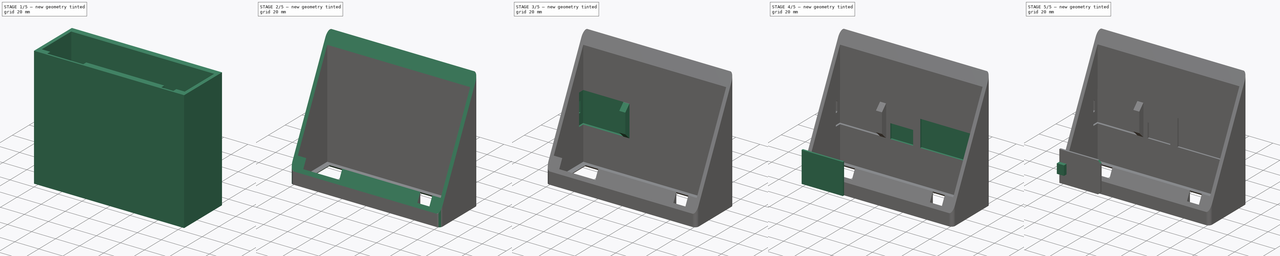
[diagram: build sequence overview — one tinted view per stage of 5, left to right]
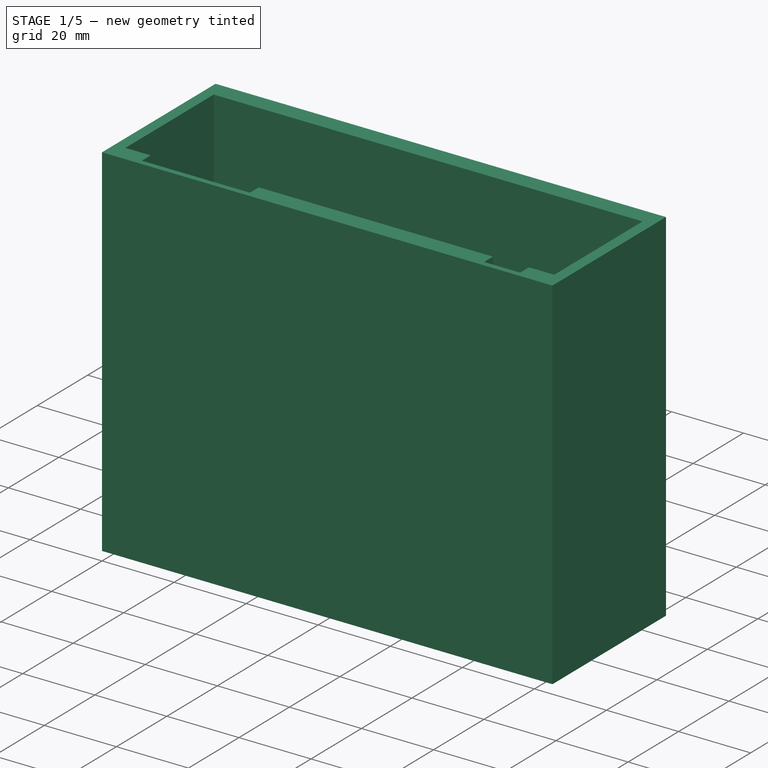
[diagram: stage 1 of 5 — iso view after this stage's code; geometry added in this stage tinted green]
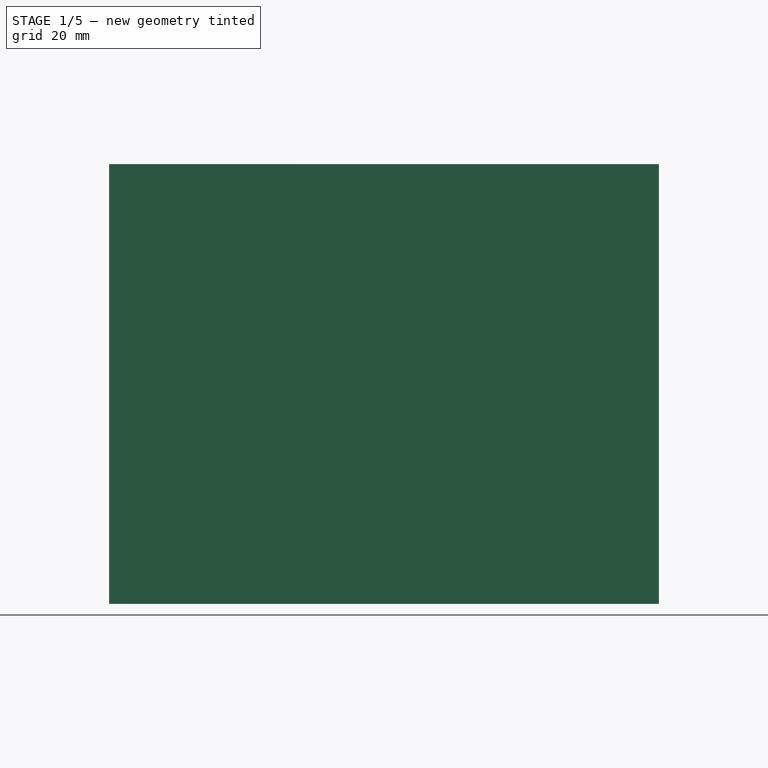
[diagram: stage 1 of 5 — front view after this stage's code; geometry added in this stage tinted green]
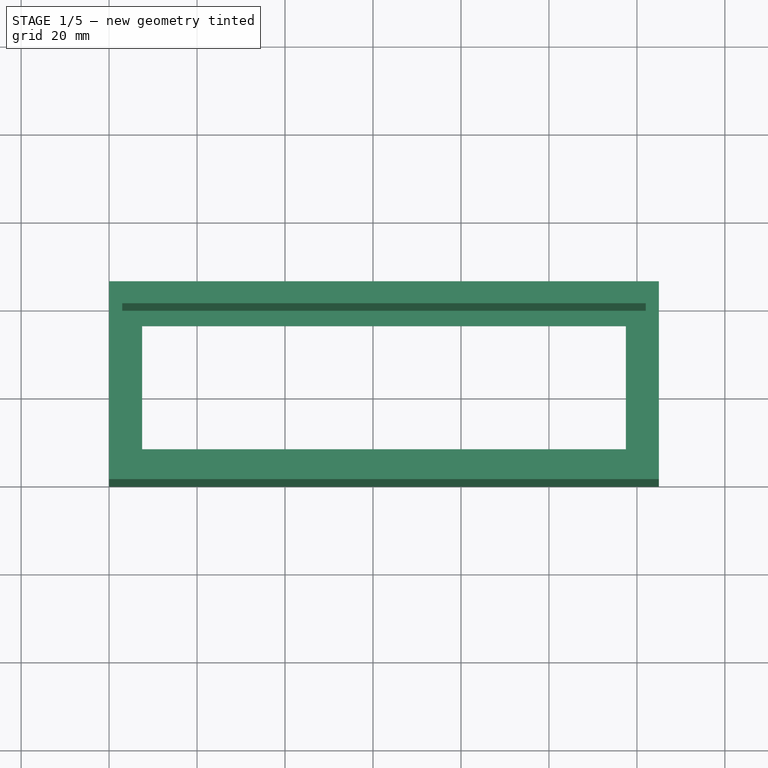
[diagram: stage 1 of 5 — top view after this stage's code; geometry added in this stage tinted green]
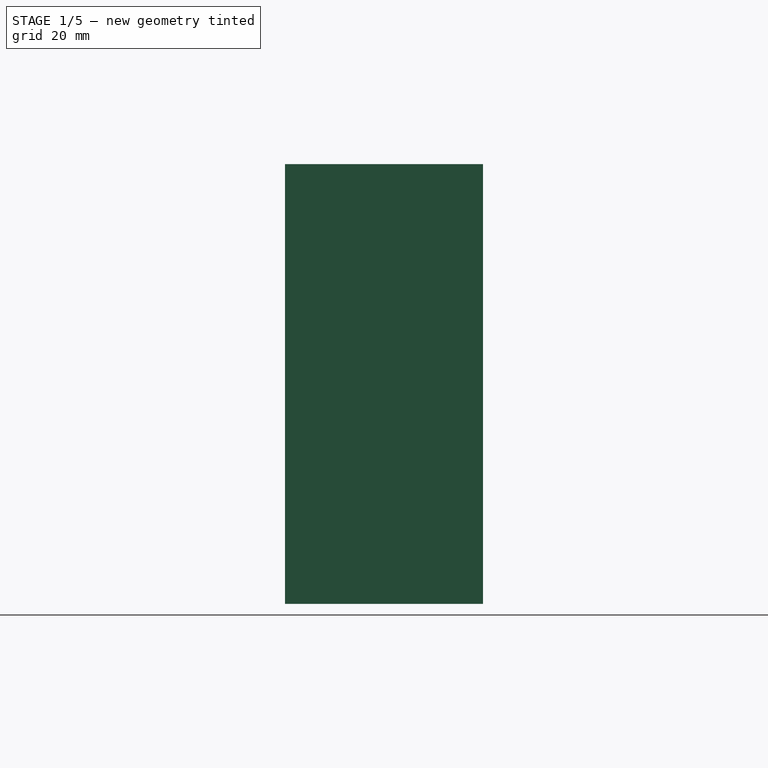
[diagram: stage 1 of 5 — right view after this stage's code; geometry added in this stage tinted green]
FCSTD DOCUMENT  (FreeCAD 0.18R4 (GitTag))
Label: casing
License: All rights reserved
LicenseURL: http://en.wikipedia.org/wiki/All_rights_reserved
objects: Sketcher::SketchObject×14, PartDesign::Pocket×7, PartDesign::Pad×6, PartDesign::Chamfer×3, PartDesign::Fillet×2, PartDesign::Body×2
note: 47 computed .brp shape members not serialized (recipe doc carries the construction recipe); baked Part::Feature solids carry a one-line shape summary decoded from their .brp

FEATURE [Sketcher::SketchObject] Sketch
  MapMode = 5
  Support = -> [XY_Plane]
  sketch-geometry (6):
    g0: LineSegment StartX=0 StartY=0 StartZ=0 EndX=125 EndY=0 EndZ=0
    g1: LineSegment StartX=125 StartY=0 StartZ=0 EndX=125 EndY=45 EndZ=0
    g2: LineSegment StartX=125 StartY=45 StartZ=0 EndX=0 EndY=45 EndZ=0
    g3: LineSegment StartX=0 StartY=45 StartZ=0 EndX=0 EndY=0 EndZ=0
    g4: LineSegment [constr] StartX=0 StartY=22.5 StartZ=0 EndX=125 EndY=22.5 EndZ=0
    g5: LineSegment [constr] StartX=62.5 StartY=45 StartZ=0 EndX=62.5 EndY=0 EndZ=0
  constraints (18):
    c: Coincident(g0,g1)
    c: Coincident(g1,g2)
    c: Coincident(g2,g3)
    c: Coincident(g3,g0)
    c: Horizontal(g0)
    c: Horizontal(g2)
    c: Vertical(g1)
    c: Vertical(g3)
    c: DistanceX(g0) = 0
    c: DistanceY(g0) = 0
    c: DistanceY(g3,g3) = 45  'OuterHeight'
    c: DistanceX(g0,g0) = 125  'OuterWidth'
    c: Vertical(g5)
    c: Horizontal(g4)
    c: Symmetric(g0,g0,g5)
    c: Symmetric(g0,g2,g4)
    c: PointOnObject(g4,g1)
    c: PointOnObject(g5,g2)
FEATURE [PartDesign::Pad] Pad
  Length = 100
  Length2 = 100
  Profile = -> Sketch
  Type = 0
FEATURE [Sketcher::SketchObject] Sketch001
  MapMode = 5
  Placement = pos=(0,0,100) rot=(0,0,1;0rad)
  Support = -> [Pad]
  expr: Constraints.BezelHeight = (Sketch.Constraints.OuterHeight - Constraints.ScreenHeight) / 2
  expr: Constraints.BezelWidth = (Sketch.Constraints.OuterWidth - Constraints.ScreenWidth) / 2
  sketch-geometry (4):
    g0: LineSegment StartX=7.5 StartY=8.5 StartZ=0 EndX=117.5 EndY=8.5 EndZ=0
    g1: LineSegment StartX=117.5 StartY=8.5 StartZ=0 EndX=117.5 EndY=36.5 EndZ=0
    g2: LineSegment StartX=117.5 StartY=36.5 StartZ=0 EndX=7.5 EndY=36.5 EndZ=0
    g3: LineSegment StartX=7.5 StartY=36.5 StartZ=0 EndX=7.5 EndY=8.5 EndZ=0
  constraints (12):
    c: Coincident(g0,g1)
    c: Coincident(g1,g2)
    c: Coincident(g2,g3)
    c: Coincident(g3,g0)
    c: Horizontal(g0)
    c: Horizontal(g2)
    c: Vertical(g1)
    c: Vertical(g3)
    c: DistanceX(g2,g2) = 110  'ScreenWidth'
    c: DistanceY(g3,g3) = 28  'ScreenHeight'
    c: DistanceX(g2) = 7.5  'BezelWidth'
    c: DistanceY(g0) = 8.5  'BezelHeight'
FEATURE [PartDesign::Pocket] Pocket
  BaseFeature = -> Pad
  Length = 100
  Length2 = 100
  Profile = -> Sketch001
  Type = 0
  expr: Length = Pad.Length
FEATURE [Sketcher::SketchObject] Sketch002
  MapMode = 5
  Placement = pos=(0,0,100) rot=(0,0,1;0rad)
  Support = -> [Pocket]
  expr: Constraints.WallHeight = (Sketch.Constraints.OuterHeight - Constraints.VFDHeight) / 2
  expr: Constraints.WallWidth = (Sketch.Constraints.OuterWidth - Constraints.VFDWidth) / 2
  sketch-geometry (4):
    g0: LineSegment StartX=3 StartY=40 StartZ=0 EndX=122 EndY=40 EndZ=0
    g1: LineSegment StartX=122 StartY=40 StartZ=0 EndX=122 EndY=5 EndZ=0
    g2: LineSegment StartX=122 StartY=5 StartZ=0 EndX=3 EndY=5 EndZ=0
    g3: LineSegment StartX=3 StartY=5 StartZ=0 EndX=3 EndY=40 EndZ=0
  constraints (12):
    c: Coincident(g0,g1)
    c: Coincident(g1,g2)
    c: Coincident(g2,g3)
    c: Coincident(g3,g0)
    c: Horizontal(g0)
    c: Horizontal(g2)
    c: Vertical(g1)
    c: Vertical(g3)
    c: DistanceX(g0,g0) = 119  'VFDWidth'
    c: DistanceY(g3,g3) = 35  'VFDHeight'
    c: DistanceX(g2) = 3  'WallWidth'
    c: DistanceY(g2) = 5  'WallHeight'
FEATURE [PartDesign::Pocket] Pocket001
  BaseFeature = -> Pocket
  Length = 98
  Length2 = 100
  Profile = -> Sketch002
  Type = 0
  expr: Length = Pad.Length - 2mm
FEATURE [Sketcher::SketchObject] Sketch003
  MapMode = 5
  Placement = pos=(0,0,100) rot=(0,0,1;0rad)
  Support = -> [Pocket001]
  expr: Constraints[18] = Sketch002.Constraints.WallHeight
  expr: Constraints[15] = Sketch002.Constraints.WallHeight + 5mm
  sketch-geometry (8):
    g0: LineSegment StartX=10 StartY=5 StartZ=0 EndX=40 EndY=5 EndZ=0
    g1: LineSegment StartX=40 StartY=5 StartZ=0 EndX=40 EndY=1.5 EndZ=0
    g2: LineSegment StartX=40 StartY=1.5 StartZ=0 EndX=10 EndY=1.5 EndZ=0
    g3: LineSegment StartX=10 StartY=1.5 StartZ=0 EndX=10 EndY=5 EndZ=0
    g4: LineSegment StartX=105 StartY=5 StartZ=0 EndX=115 EndY=5 EndZ=0
    g5: LineSegment StartX=115 StartY=5 StartZ=0 EndX=115 EndY=1.5 EndZ=0
    g6: LineSegment StartX=115 StartY=1.5 StartZ=0 EndX=105 EndY=1.5 EndZ=0
    g7: LineSegment StartX=105 StartY=1.5 StartZ=0 EndX=105 EndY=5 EndZ=0
  constraints (22):
    c: Coincident(g0,g1)
    c: Coincident(g1,g2)
    c: Coincident(g2,g3)
    c: Coincident(g3,g0)
    c: Horizontal(g0)
    c: Horizontal(g2)
    c: Vertical(g1)
    c: Vertical(g3)
    c: Coincident(g4,g5)
    c: Coincident(g5,g6)
    c: Coincident(g6,g7)
    c: Coincident(g7,g4)
    c: Vertical(g5)
    c: Vertical(g7)
    c: DistanceX(g2,g2) = 30
    c: DistanceX(g-1,g2) = 10
    c: DistanceX(g0,g4) = 65
    c: DistanceX(g4,g4) = 10
    c: DistanceY(g-1,g0) = 5
    c: DistanceY(g2,g0) = 3.5
    c: Tangent(g4,g0)
    c: Tangent(g6,g2)
FEATURE [PartDesign::Pocket] Pocket002
  BaseFeature = -> Pocket001
  Length = 98
  Length2 = 100
  Profile = -> Sketch003
  Type = 0
  expr: Length = Pad.Length - 2mm
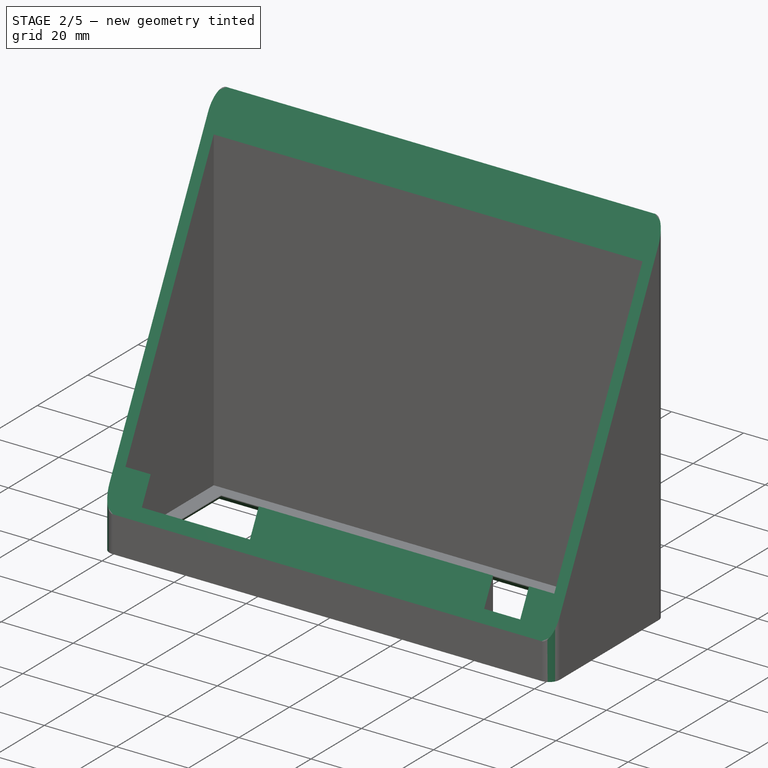
[diagram: stage 2 of 5 — iso view after this stage's code; geometry added in this stage tinted green]
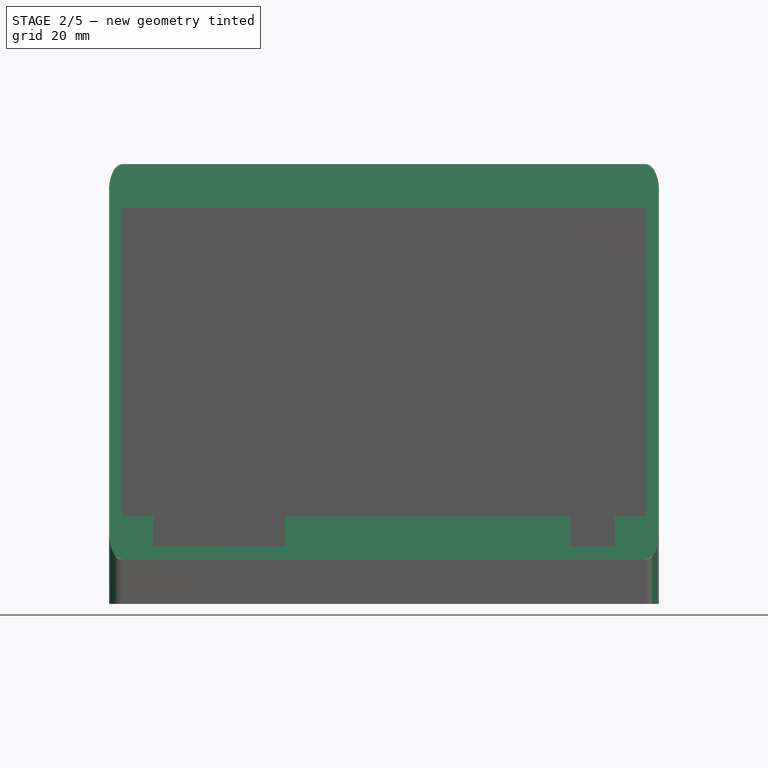
[diagram: stage 2 of 5 — front view after this stage's code; geometry added in this stage tinted green]
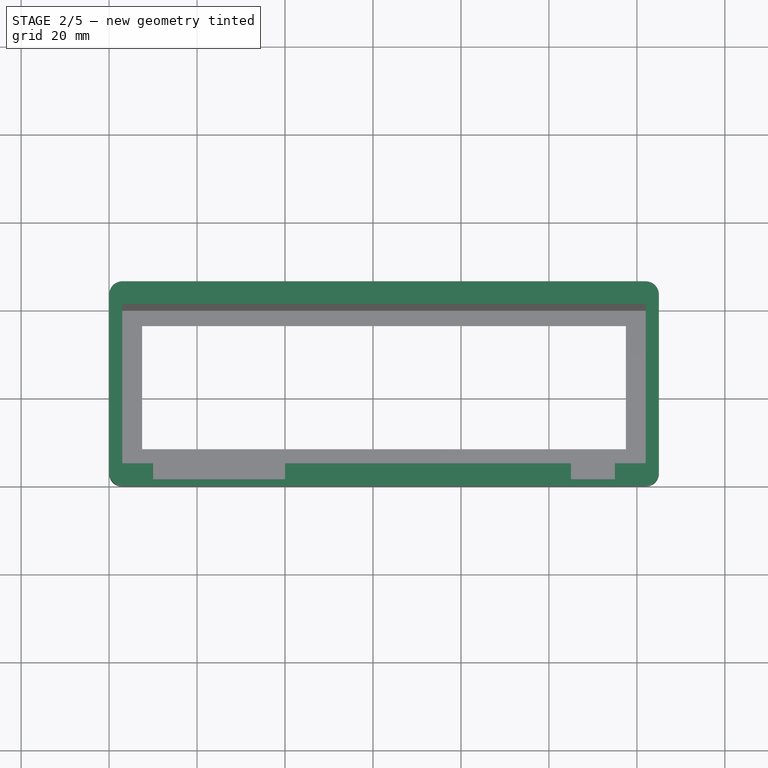
[diagram: stage 2 of 5 — top view after this stage's code; geometry added in this stage tinted green]
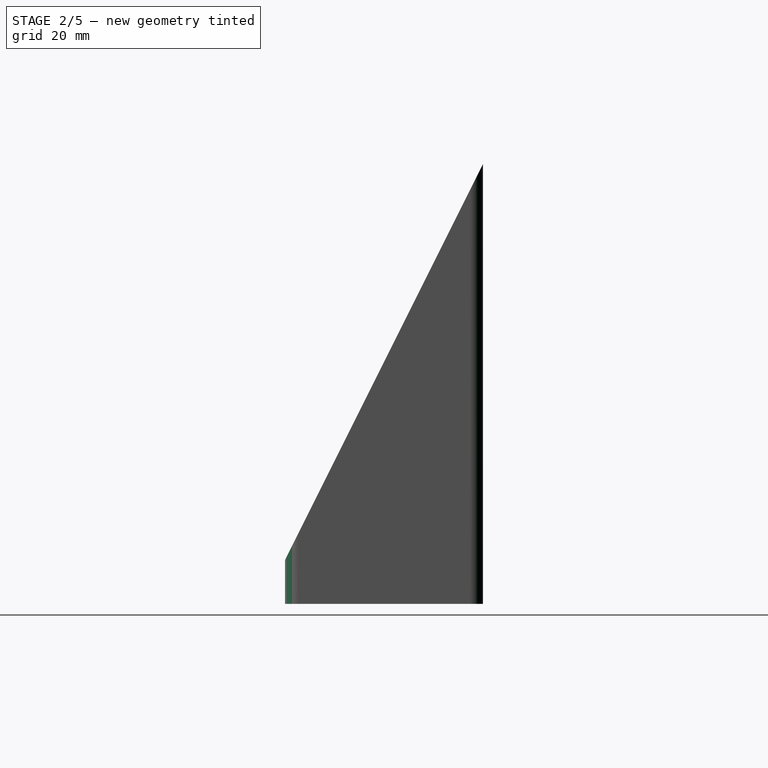
[diagram: stage 2 of 5 — right view after this stage's code; geometry added in this stage tinted green]
FEATURE [PartDesign::Fillet] Fillet001
  Base = -> Pocket002 [Edge8,Edge2,Edge1,Edge5]
  BaseFeature = -> Pocket002
  Radius = 3
FEATURE [PartDesign::Chamfer] Chamfer
  Base = -> Fillet001 [Edge12,Edge14,Edge15,Edge13]
  BaseFeature = -> Fillet001
  Size = 1.8
FEATURE [Sketcher::SketchObject] Sketch004
  MapMode = 5
  Placement = pos=(0,0,0) rot=(0.57735,-0.57735,-0.57735;2.0944rad)
  Support = -> [Chamfer]
  expr: Constraints[5] = Pad.Length
  expr: Constraints[4] = Sketch.Constraints.OuterHeight
  sketch-geometry (3):
    g0: LineSegment StartX=0 StartY=10 StartZ=0 EndX=-45 EndY=100 EndZ=0
    g1: LineSegment StartX=-45 StartY=100 StartZ=0 EndX=0 EndY=100 EndZ=0
    g2: LineSegment StartX=0 StartY=10 StartZ=0 EndX=0 EndY=100 EndZ=0
  constraints (9):
    c: Vertical(g2)
    c: Horizontal(g1)
    c: DistanceX(g2) = 0
    c: DistanceY(g0) = 10
    c: DistanceX(g1,g1) = 45
    c: DistanceY(g-1,g1) = 100
    c: Coincident(g0,g1)
    c: Coincident(g1,g2)
    c: Coincident(g0,g2)
FEATURE [PartDesign::Pocket] Pocket003
  BaseFeature = -> Chamfer
  Length = 125
  Length2 = 100
  Profile = -> Sketch004
  Type = 0
  expr: Length = Sketch.Constraints.OuterWidth
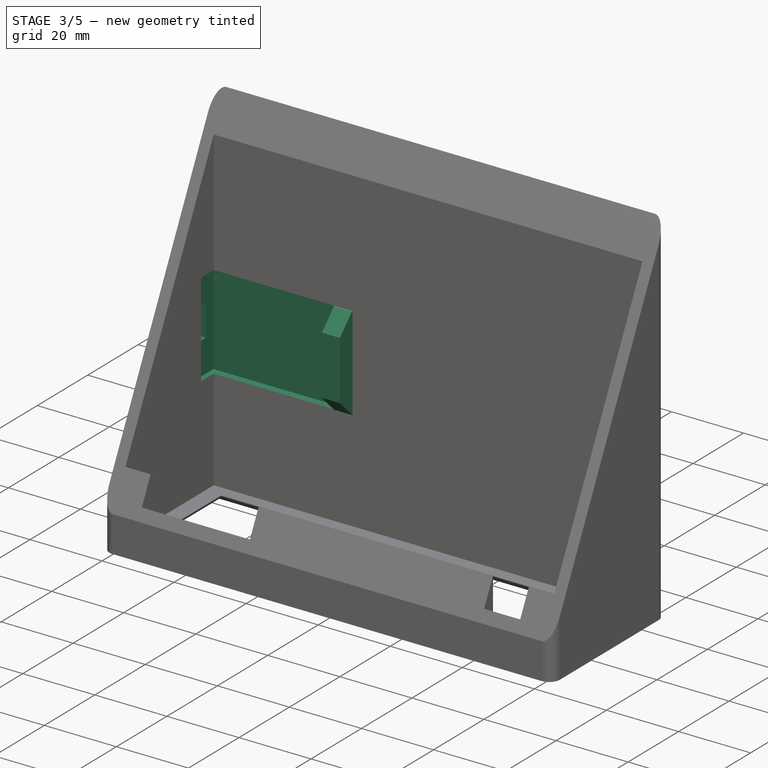
[diagram: stage 3 of 5 — iso view after this stage's code; geometry added in this stage tinted green]
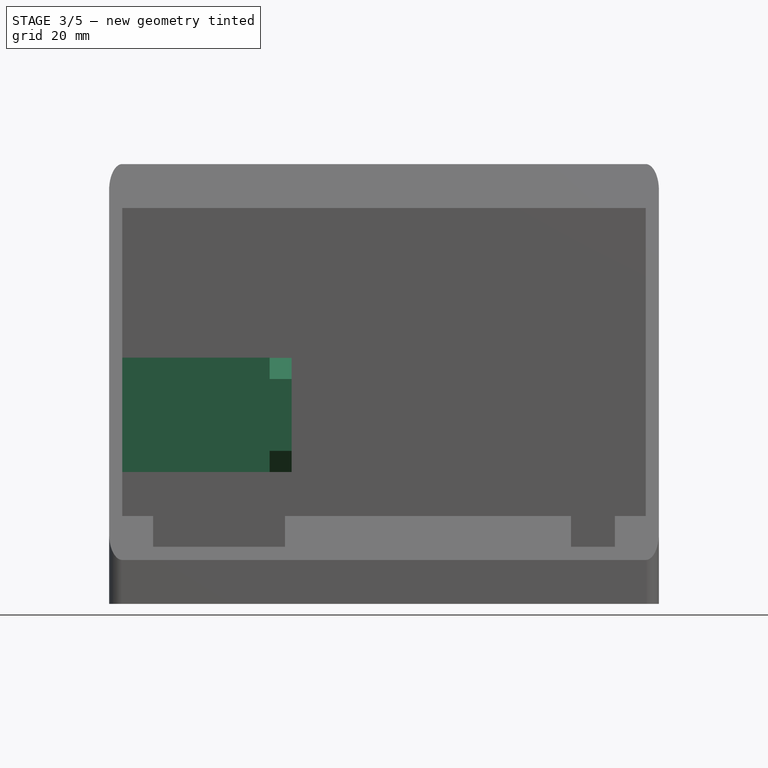
[diagram: stage 3 of 5 — front view after this stage's code; geometry added in this stage tinted green]
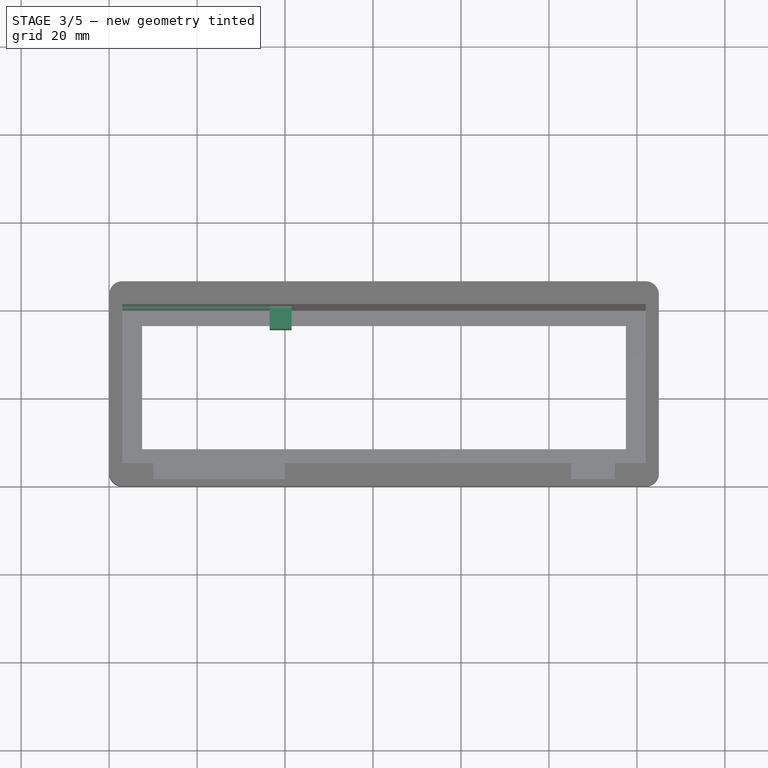
[diagram: stage 3 of 5 — top view after this stage's code; geometry added in this stage tinted green]
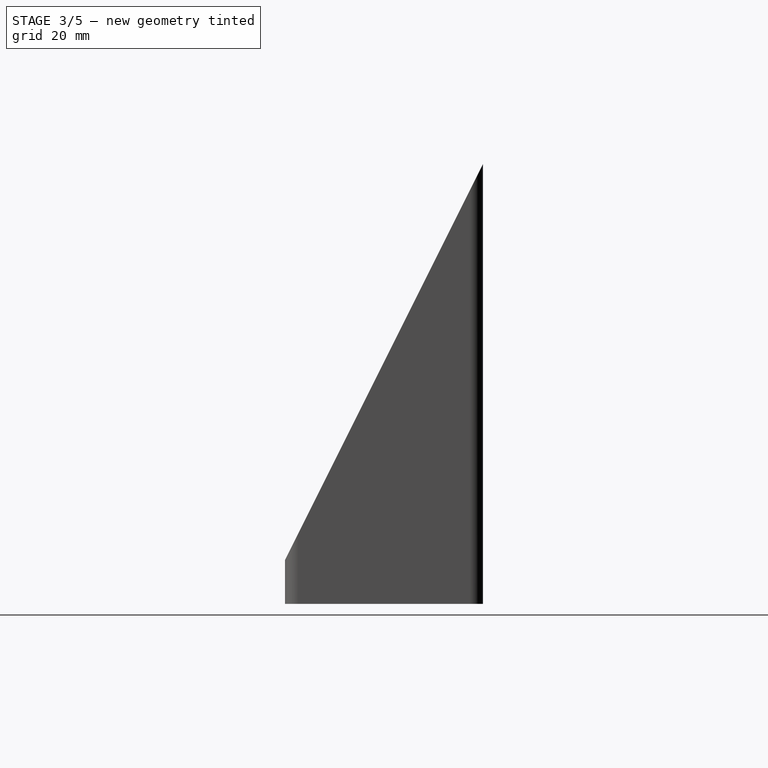
[diagram: stage 3 of 5 — right view after this stage's code; geometry added in this stage tinted green]
FEATURE [Sketcher::SketchObject] Sketch005
  MapMode = 5
  Placement = pos=(0,40,0) rot=(1,0,0;1.5708rad)
  Support = -> [Pocket003]
  expr: Constraints.WemosInstep = 1.5
  sketch-geometry (4):
    g0: LineSegment StartX=1.5 StartY=56 StartZ=0 EndX=36.5 EndY=56 EndZ=0
    g1: LineSegment StartX=36.5 StartY=56 StartZ=0 EndX=36.5 EndY=30 EndZ=0
    g2: LineSegment StartX=36.5 StartY=30 StartZ=0 EndX=1.5 EndY=30 EndZ=0
    g3: LineSegment StartX=1.5 StartY=30 StartZ=0 EndX=1.5 EndY=56 EndZ=0
  constraints (12):
    c: Coincident(g0,g1)
    c: Coincident(g1,g2)
    c: Coincident(g2,g3)
    c: Coincident(g3,g0)
    c: Horizontal(g0)
    c: Horizontal(g2)
    c: Vertical(g1)
    c: Vertical(g3)
    c: DistanceX(g2) = 1.5  'WemosInstep'
    c: DistanceY(g2) = 30  'WemosSetback'
    c: DistanceY(g3,g3) = 26  'WemosW'
    c: DistanceX(g2,g2) = 35  'WemosL'
FEATURE [PartDesign::Pocket] Pocket004
  BaseFeature = -> Pocket003
  Length = 2
  Length2 = 5
  Profile = -> Sketch005
  Type = 4
FEATURE [Sketcher::SketchObject] Sketch006
  MapMode = 5
  Placement = pos=(0,40,0) rot=(1,0,0;1.5708rad)
  Support = -> [Pocket004]
  expr: Constraints[9] = Sketch005.Constraints.WemosSetback
  expr: Constraints[8] = Sketch005.Constraints.WemosL + Sketch005.Constraints.WemosInstep
  sketch-geometry (4):
    g0: LineSegment StartX=36.5 StartY=30 StartZ=0 EndX=41.5 EndY=30 EndZ=0
    g1: LineSegment StartX=41.5 StartY=30 StartZ=0 EndX=41.5 EndY=55.95 EndZ=0
    g2: LineSegment StartX=41.5 StartY=55.95 StartZ=0 EndX=36.5 EndY=55.95 EndZ=0
    g3: LineSegment StartX=36.5 StartY=55.95 StartZ=0 EndX=36.5 EndY=30 EndZ=0
  constraints (12):
    c: Coincident(g0,g1)
    c: Coincident(g1,g2)
    c: Coincident(g2,g3)
    c: Coincident(g3,g0)
    c: Horizontal(g0)
    c: Horizontal(g2)
    c: Vertical(g1)
    c: Vertical(g3)
    c: DistanceX(g0) = 36.5
    c: DistanceY(g0) = 30
    c: DistanceX(g0,g0) = 5
    c: DistanceY(g3,g3) = 25.95
FEATURE [PartDesign::Pad] Pad001
  BaseFeature = -> Pocket004
  Length = 5
  Length2 = 100
  Profile = -> Sketch006
  Type = 0
FEATURE [PartDesign::Chamfer] Chamfer001
  Base = -> Pad001 [Edge103,Edge99]
  BaseFeature = -> Pad001
  Size = 4.8
FEATURE [Sketcher::SketchObject] Sketch007
  MapMode = 5
  Placement = pos=(1.5,0,0) rot=(0.57735,0.57735,0.57735;2.0944rad)
  Support = -> [Chamfer001]
  expr: Constraints[11] = Sketch002.Constraints.WallHeight + Sketch002.Constraints.VFDHeight - Pocket004.Length2
  expr: Constraints[8] = Sketch005.Constraints.WemosSetback + 9mm
  sketch-geometry (4):
    g0: LineSegment StartX=35 StartY=48 StartZ=0 EndX=39 EndY=48 EndZ=0
    g1: LineSegment StartX=39 StartY=48 StartZ=0 EndX=39 EndY=39 EndZ=0
    g2: LineSegment StartX=39 StartY=39 StartZ=0 EndX=35 EndY=39 EndZ=0
    g3: LineSegment StartX=35 StartY=39 StartZ=0 EndX=35 EndY=48 EndZ=0
  constraints (12):
    c: Coincident(g0,g1)
    c: Coincident(g1,g2)
    c: Coincident(g2,g3)
    c: Coincident(g3,g0)
    c: Horizontal(g0)
    c: Horizontal(g2)
    c: Vertical(g1)
    c: Vertical(g3)
    c: DistanceY(g1) = 39
    c: DistanceX(g0,g0) = 4
    c: DistanceY(g3,g3) = 9
    c: DistanceX(g2) = 35
FEATURE [PartDesign::Pocket] Pocket005
  BaseFeature = -> Chamfer001
  Length = 5
  Length2 = 100
  Profile = -> Sketch007
  Type = 0
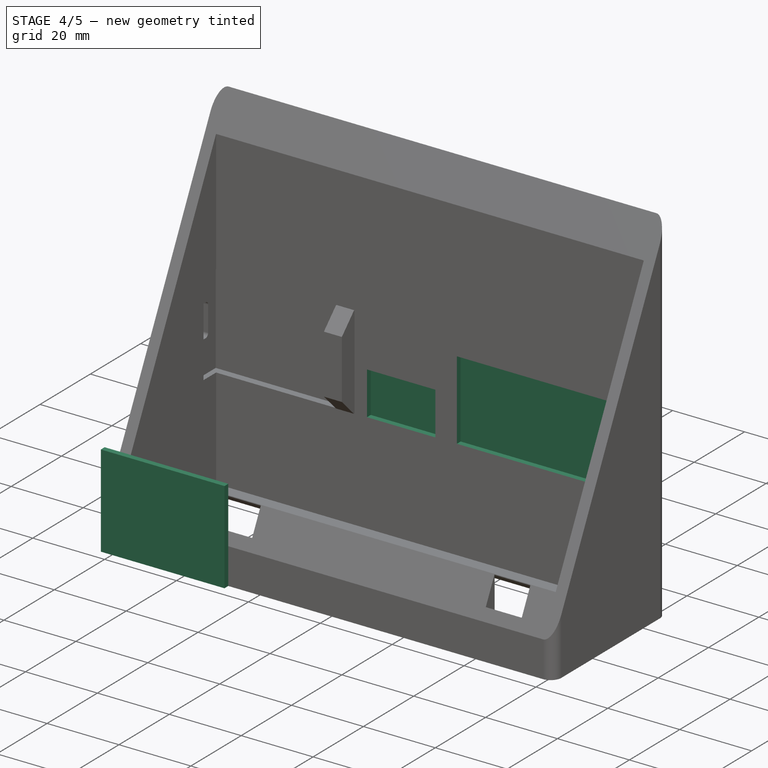
[diagram: stage 4 of 5 — iso view after this stage's code; geometry added in this stage tinted green]
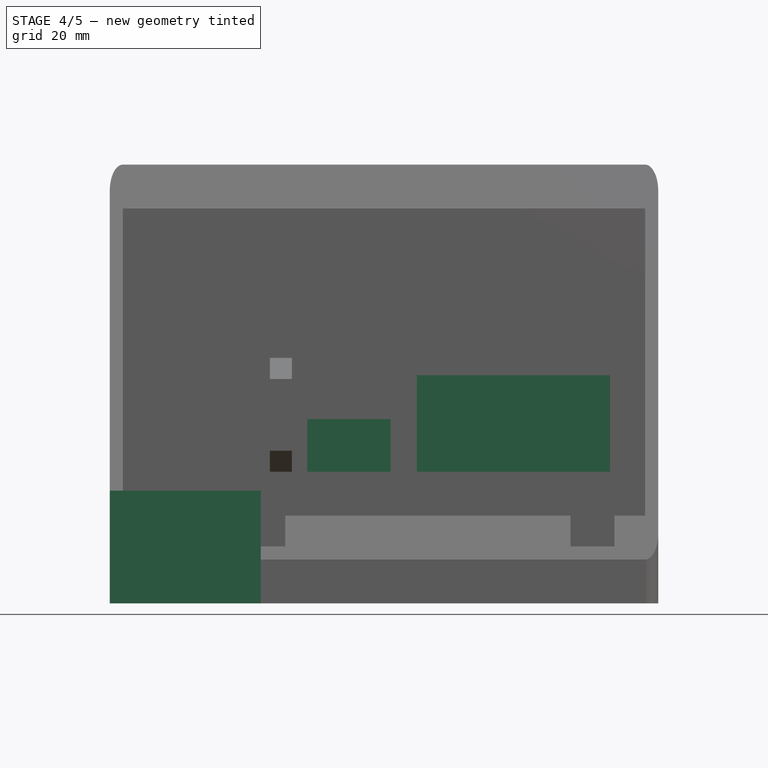
[diagram: stage 4 of 5 — front view after this stage's code; geometry added in this stage tinted green]
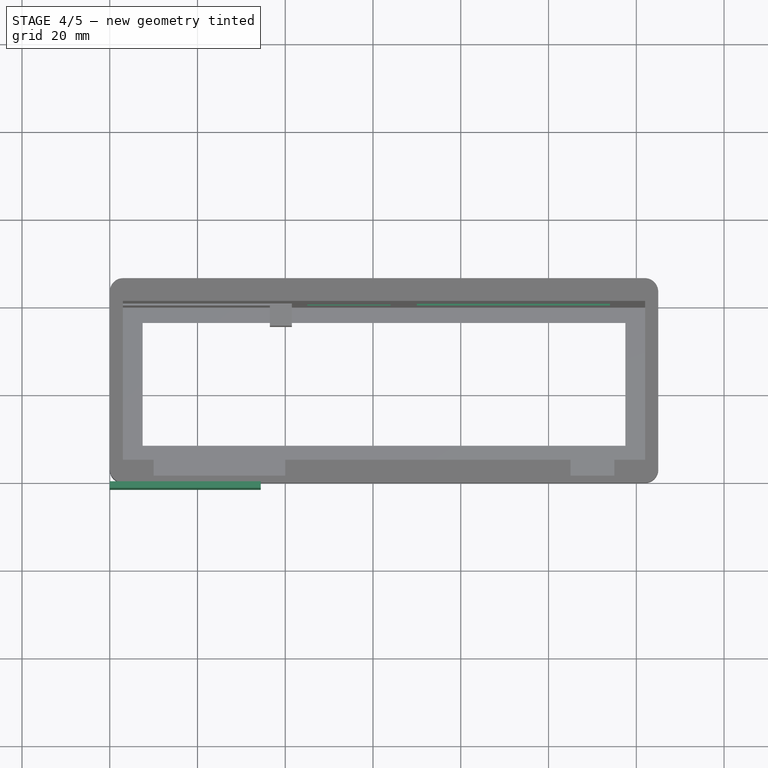
[diagram: stage 4 of 5 — top view after this stage's code; geometry added in this stage tinted green]
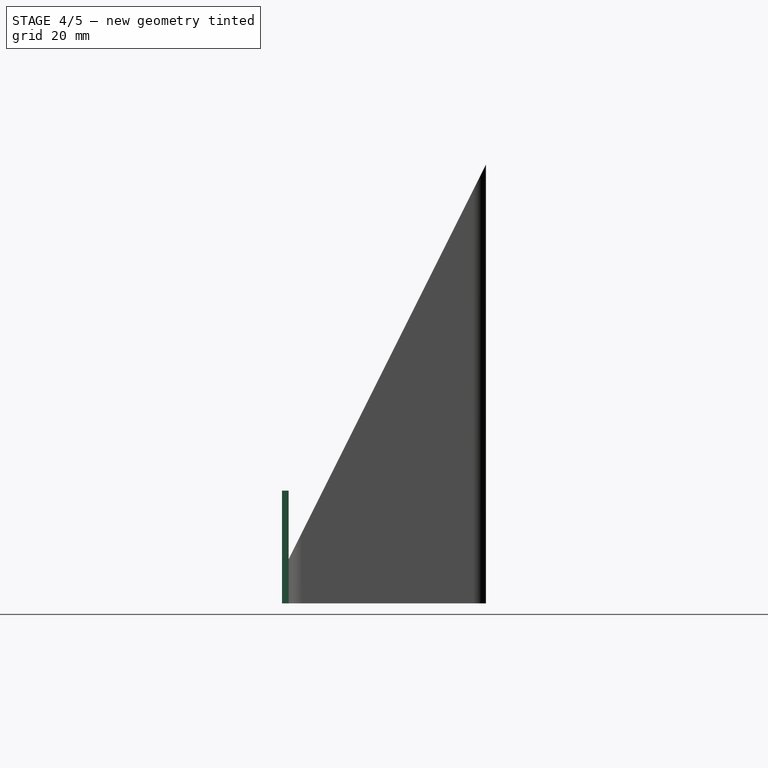
[diagram: stage 4 of 5 — right view after this stage's code; geometry added in this stage tinted green]
FEATURE [PartDesign::Fillet] Fillet
  Base = -> Pocket005 [Edge130,Edge131,Edge129,Edge128]
  BaseFeature = -> Pocket005
  Radius = 1
FEATURE [Sketcher::SketchObject] Sketch008
  MapMode = 5
  Placement = pos=(0,40,0) rot=(1,0,0;1.5708rad)
  Support = -> [Fillet]
  expr: Constraints[23] = Sketch005.Constraints.WemosSetback
  expr: Constraints[21] = Sketch005.Constraints.WemosSetback
  sketch-geometry (8):
    g0: LineSegment StartX=45 StartY=42 StartZ=0 EndX=64 EndY=42 EndZ=0
    g1: LineSegment StartX=64 StartY=42 StartZ=0 EndX=64 EndY=30 EndZ=0
    g2: LineSegment StartX=64 StartY=30 StartZ=0 EndX=45 EndY=30 EndZ=0
    g3: LineSegment StartX=45 StartY=30 StartZ=0 EndX=45 EndY=42 EndZ=0
    g4: LineSegment StartX=70 StartY=52 StartZ=0 EndX=114 EndY=52 EndZ=0
    g5: LineSegment StartX=114 StartY=52 StartZ=0 EndX=114 EndY=30 EndZ=0
    g6: LineSegment StartX=114 StartY=30 StartZ=0 EndX=70 EndY=30 EndZ=0
    g7: LineSegment StartX=70 StartY=30 StartZ=0 EndX=70 EndY=52 EndZ=0
  constraints (24):
    c: Coincident(g0,g1)
    c: Coincident(g1,g2)
    c: Coincident(g2,g3)
    c: Coincident(g3,g0)
    c: Horizontal(g0)
    c: Horizontal(g2)
    c: Vertical(g1)
    c: Vertical(g3)
    c: Coincident(g4,g5)
    c: Coincident(g5,g6)
    c: Coincident(g6,g7)
    c: Coincident(g7,g4)
    c: Horizontal(g4)
    c: Horizontal(g6)
    c: Vertical(g5)
    c: Vertical(g7)
    c: DistanceY(g3,g3) = 12
    c: DistanceY(g7,g7) = 22
    c: DistanceX(g0,g0) = 19
    c: DistanceX(g4,g4) = 44
    c: DistanceX(g2) = 45
    c: DistanceY(g2) = 30
    c: DistanceX(g6) = 70
    c: DistanceY(g6) = 30
FEATURE [PartDesign::Pocket] Pocket006
  BaseFeature = -> Fillet
  Length = 1.5
  Length2 = 100
  Profile = -> Sketch008
  Type = 0
FEATURE [Sketcher::SketchObject] Sketch009
  MapMode = 5
  Placement = pos=(0,0,0) rot=(1,0,0;1.5708rad)
  Support = -> [XZ_Plane002]
  sketch-geometry (4):
    g0: LineSegment StartX=0 StartY=4e-16 StartZ=0 EndX=34.4 EndY=4e-16 EndZ=0
    g1: LineSegment StartX=34.4 StartY=4e-16 StartZ=0 EndX=34.4 EndY=25.7 EndZ=0
    g2: LineSegment StartX=34.4 StartY=25.7 StartZ=0 EndX=0 EndY=25.7 EndZ=0
    g3: LineSegment StartX=0 StartY=25.7 StartZ=0 EndX=0 EndY=0 EndZ=0
  constraints (11):
    c: Coincident(g0,g1)
    c: Coincident(g1,g2)
    c: Coincident(g2,g3)
    c: Coincident(g3,g0)
    c: Horizontal(g0)
    c: Horizontal(g2)
    c: Vertical(g1)
    c: Vertical(g3)
    c: DistanceY(g1,g1) = 25.7
    c: Coincident(g0,g-1)
    c: DistanceX(g2,g2) = 34.4
FEATURE [PartDesign::Pad] Pad002
  Length = 1.5
  Length2 = 100
  Placement = pos=(0,0,0) rot=(1,0,0;1.5708rad)
  Profile = -> Sketch009
  Type = 0
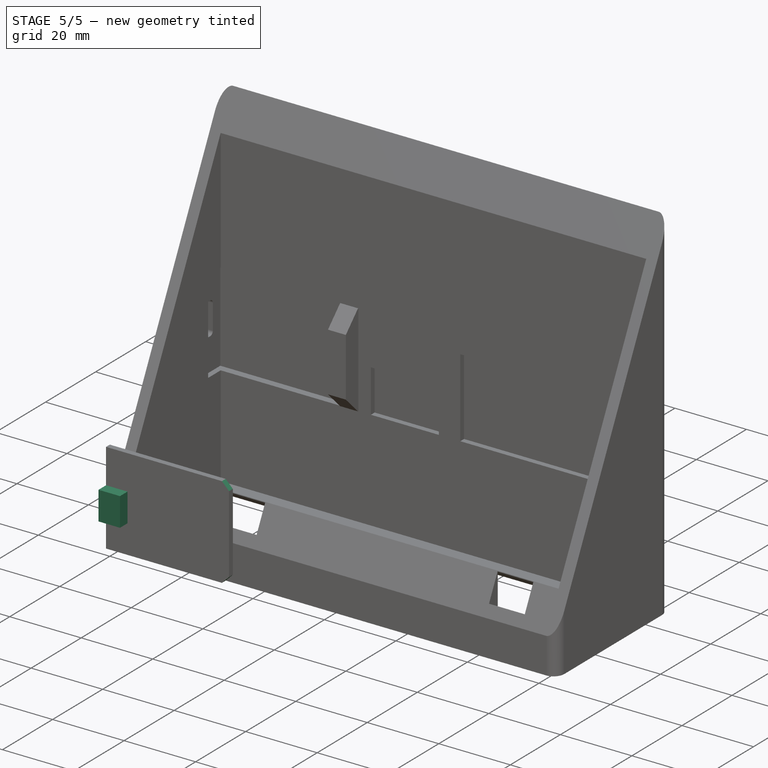
[diagram: stage 5 of 5 — iso view after this stage's code; geometry added in this stage tinted green]
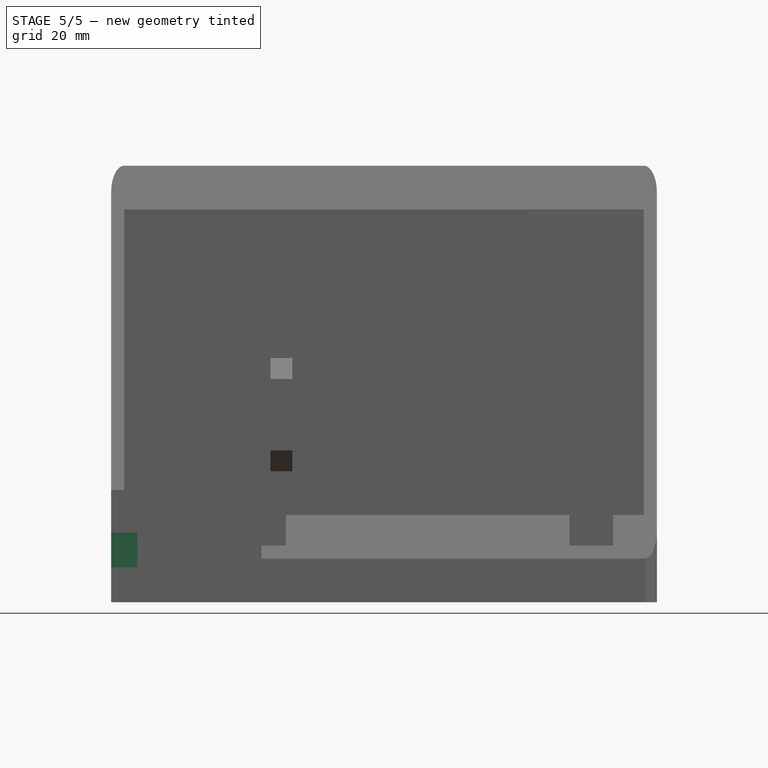
[diagram: stage 5 of 5 — front view after this stage's code; geometry added in this stage tinted green]
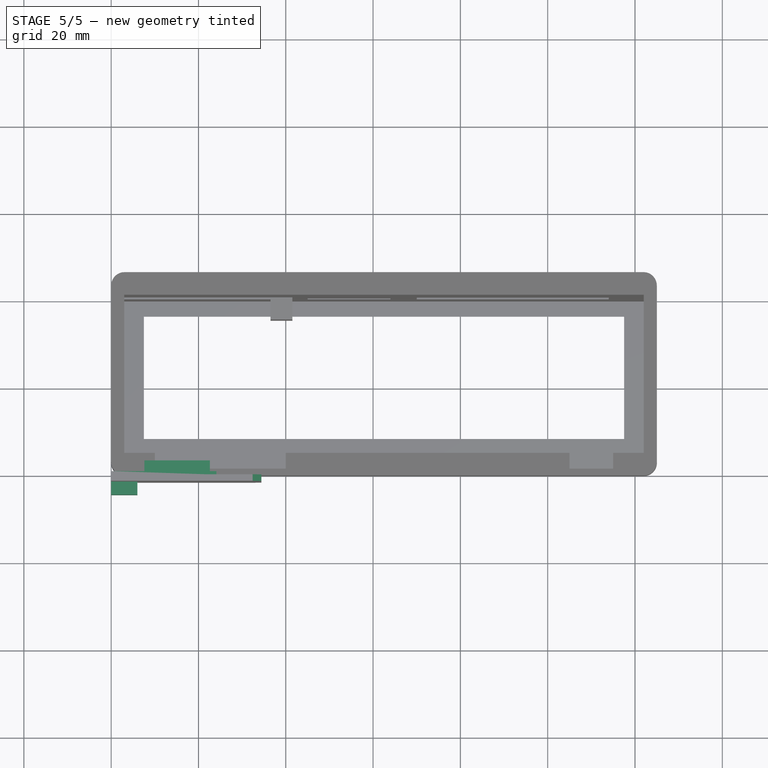
[diagram: stage 5 of 5 — top view after this stage's code; geometry added in this stage tinted green]
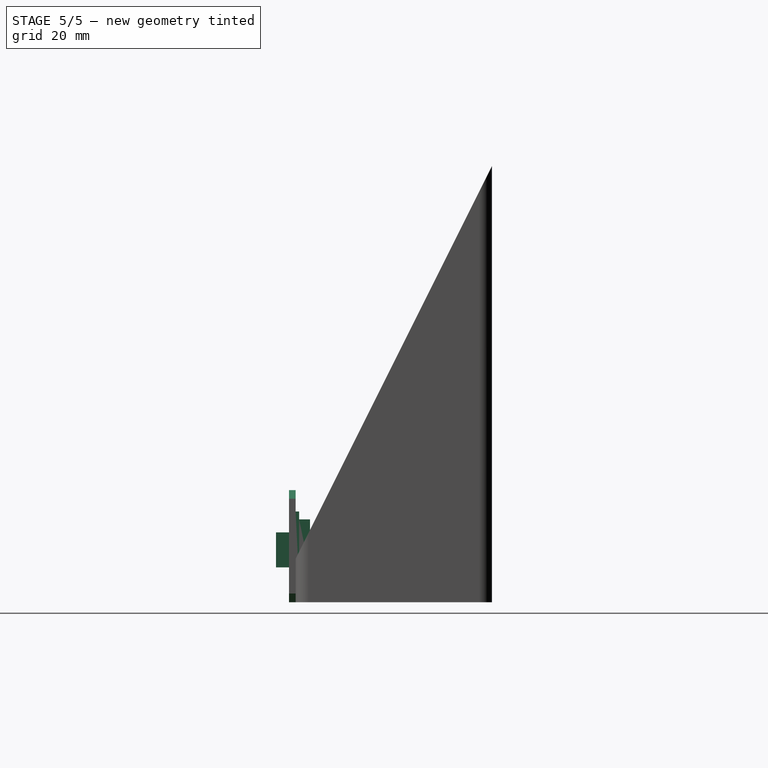
[diagram: stage 5 of 5 — right view after this stage's code; geometry added in this stage tinted green]
FEATURE [Sketcher::SketchObject] Sketch010
  MapMode = 5
  Placement = pos=(0,0,0) rot=(-1,0,0;1.5708rad)
  Support = -> [Pad002]
  sketch-geometry (4):
    g0: LineSegment StartX=24.1 StartY=-20.8 StartZ=0 EndX=0 EndY=-20.8 EndZ=0
    g1: LineSegment StartX=0 StartY=-20.8 StartZ=0 EndX=0 EndY=-4.8 EndZ=0
    g2: LineSegment StartX=0 StartY=-4.8 StartZ=0 EndX=24.1 EndY=-4.8 EndZ=0
    g3: LineSegment StartX=24.1 StartY=-4.8 StartZ=0 EndX=24.1 EndY=-20.8 EndZ=0
  constraints (12):
    c: Coincident(g0,g1)
    c: Coincident(g1,g2)
    c: Coincident(g2,g3)
    c: Coincident(g3,g0)
    c: Horizontal(g0)
    c: Horizontal(g2)
    c: Vertical(g1)
    c: Vertical(g3)
    c: DistanceY(g1,g1) = 16
    c: DistanceX(g0,g0) = 24.1
    c: DistanceX(g1) = 0
    c: DistanceY(g1) = -4.8
FEATURE [PartDesign::Pad] Pad003
  BaseFeature = -> Pad002
  Length = 0.8
  Length2 = 100
  Placement = pos=(0,0,0) rot=(1,0,0;1.5708rad)
  Profile = -> Sketch010
  Type = 0
FEATURE [Sketcher::SketchObject] Sketch011
  MapMode = 5
  Placement = pos=(0,0.8,-9e-16) rot=(-1,0,0;1.5708rad)
  Support = -> [Pad003]
  sketch-geometry (4):
    g0: LineSegment StartX=7.6 StartY=-7 StartZ=0 EndX=22.6 EndY=-7 EndZ=0
    g1: LineSegment StartX=22.6 StartY=-7 StartZ=0 EndX=22.6 EndY=-19 EndZ=0
    g2: LineSegment StartX=22.6 StartY=-19 StartZ=0 EndX=7.6 EndY=-19 EndZ=0
    g3: LineSegment StartX=7.6 StartY=-19 StartZ=0 EndX=7.6 EndY=-7 EndZ=0
  constraints (12):
    c: Coincident(g0,g1)
    c: Coincident(g1,g2)
    c: Coincident(g2,g3)
    c: Coincident(g3,g0)
    c: Horizontal(g0)
    c: Horizontal(g2)
    c: Vertical(g1)
    c: Vertical(g3)
    c: DistanceX(g0) = 7.6
    c: DistanceY(g0) = -7
    c: DistanceY(g3,g3) = 12
    c: DistanceX(g0,g0) = 15
FEATURE [PartDesign::Pad] Pad004
  BaseFeature = -> Pad003
  Length = 2.5
  Length2 = 100
  Placement = pos=(0,0,0) rot=(1,0,0;1.5708rad)
  Profile = -> Sketch011
  Type = 0
FEATURE [PartDesign::Chamfer] Chamfer002
  Base = -> Pad004 [Edge10,Edge2]
  BaseFeature = -> Pad004
  Placement = pos=(0,0,0) rot=(1,0,0;1.5708rad)
  Size = 2
FEATURE [Sketcher::SketchObject] Sketch012
  MapMode = 5
  Placement = pos=(0,-1.5,2.3e-15) rot=(1,0,0;1.5708rad)
  Support = -> [Chamfer002]
  sketch-geometry (4):
    g0: LineSegment StartX=0 StartY=16 StartZ=0 EndX=6 EndY=16 EndZ=0
    g1: LineSegment StartX=6 StartY=16 StartZ=0 EndX=6 EndY=8 EndZ=0
    g2: LineSegment StartX=6 StartY=8 StartZ=0 EndX=0 EndY=8 EndZ=0
    g3: LineSegment StartX=0 StartY=8 StartZ=0 EndX=0 EndY=16 EndZ=0
  constraints (12):
    c: Coincident(g0,g1)
    c: Coincident(g1,g2)
    c: Coincident(g2,g3)
    c: Coincident(g3,g0)
    c: Horizontal(g0)
    c: Horizontal(g2)
    c: Vertical(g1)
    c: Vertical(g3)
    c: DistanceX(g2) = 0
    c: DistanceY(g2) = 8
    c: DistanceY(g3,g3) = 8
    c: DistanceX(g2,g2) = 6
FEATURE [PartDesign::Pad] Pad005
  BaseFeature = -> Chamfer002
  Length = 3
  Length2 = 100
  Placement = pos=(0,0,0) rot=(1,0,0;1.5708rad)
  Profile = -> Sketch012
  Type = 0
FEATURE [PartDesign::Body] Body002
  Group = -> [Sketch009,Pad002,Sketch010,Pad003,Sketch011,Pad004,Chamfer002,Sketch012,Pad005]
  Origin = -> Origin002
  Placement = pos=(2,40,30) rot=(0,0,1;0rad)
  Tip = -> Pad005
FEATURE [Sketcher::SketchObject] Sketch013
  MapMode = 5
  Placement = pos=(0,41.5,-1.33e-14) rot=(1,0,0;1.5708rad)
  Support = -> [Pocket006]
  sketch-geometry (4):
    g0: LineSegment StartX=70.1318 StartY=51.8591 StartZ=0 EndX=114.012 EndY=51.8591 EndZ=0
    g1: LineSegment StartX=114.012 StartY=51.8591 StartZ=0 EndX=114.012 EndY=29.7803 EndZ=0
    g2: LineSegment StartX=114.012 StartY=29.7803 StartZ=0 EndX=70.1318 EndY=29.7803 EndZ=0
    g3: LineSegment StartX=70.1318 StartY=29.7803 StartZ=0 EndX=70.1318 EndY=51.8591 EndZ=0
  constraints (12):
    c: Coincident(g0,g1)
    c: Coincident(g1,g2)
    c: Coincident(g2,g3)
    c: Coincident(g3,g0)
    c: Horizontal(g0)
    c: Horizontal(g2)
    c: Vertical(g1)
    c: Vertical(g3)
    c: DistanceX(g0) = 70.1318
    c: DistanceY(g0) = 51.8591
    c: DistanceX(g1) = 114.012
    c: DistanceY(g1) = 29.7803
FEATURE [PartDesign::Body] Body
  Group = -> [Sketch,Pad,Sketch001,Pocket,Sketch002,Pocket001,Sketch003,Pocket002,Fillet001,Chamfer,Sketch004,Pocket003,Sketch005,Pocket004,Sketch006,Pad001,Chamfer001,Sketch007,Pocket005,Fillet,Sketch008,Pocket006,Sketch013]
  Origin = -> Origin
  Tip = -> Pocket006
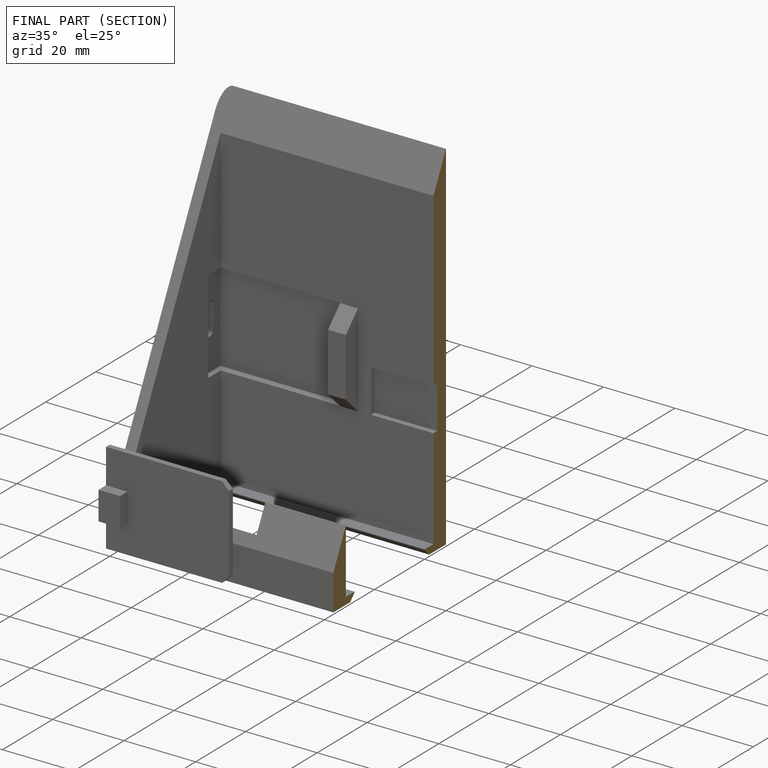
[diagram: finished part — half-section view (interior)]
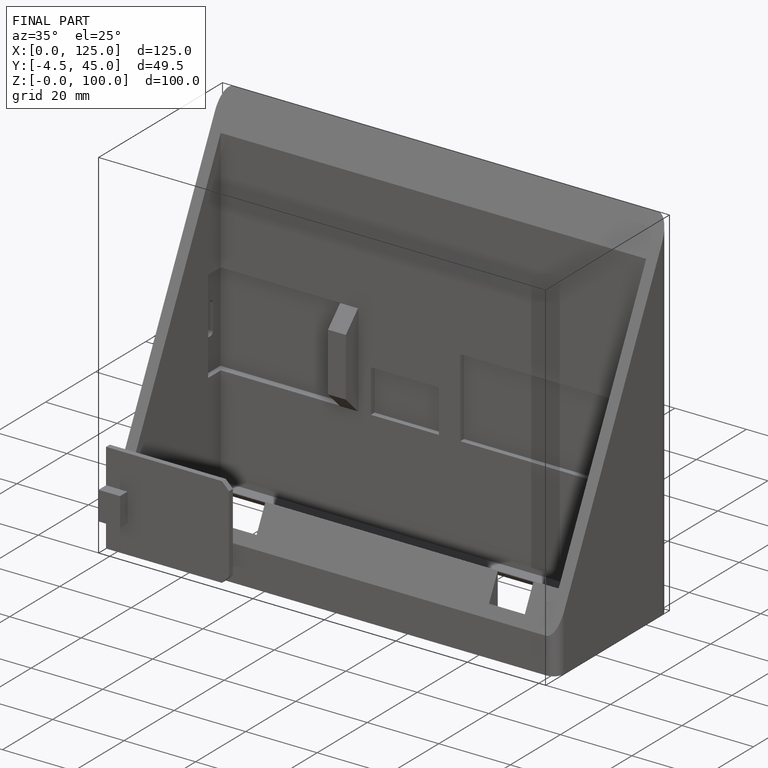
[diagram: finished part — iso view with bounding-box wireframe]
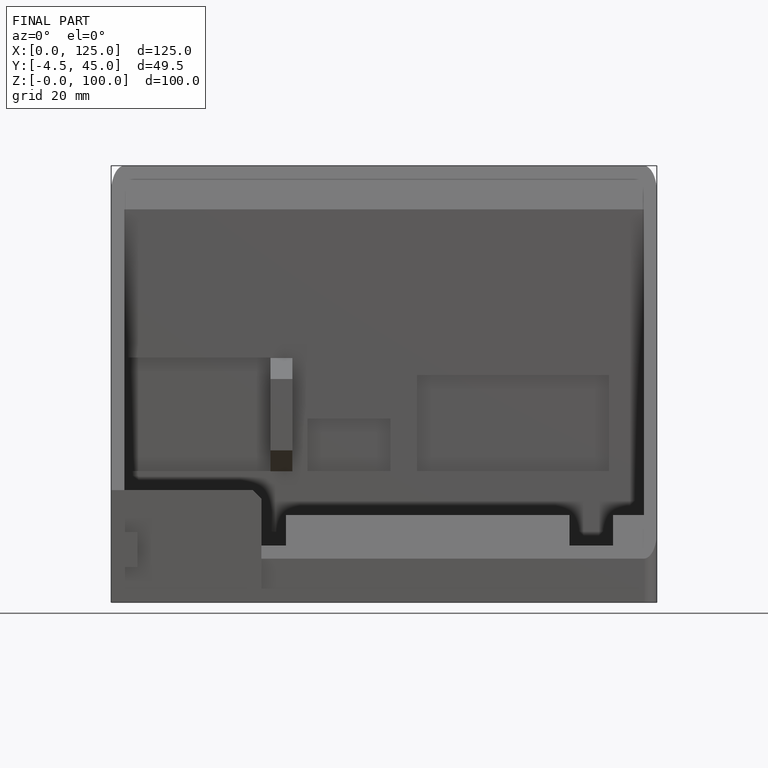
[diagram: finished part — front view with bounding-box wireframe]
